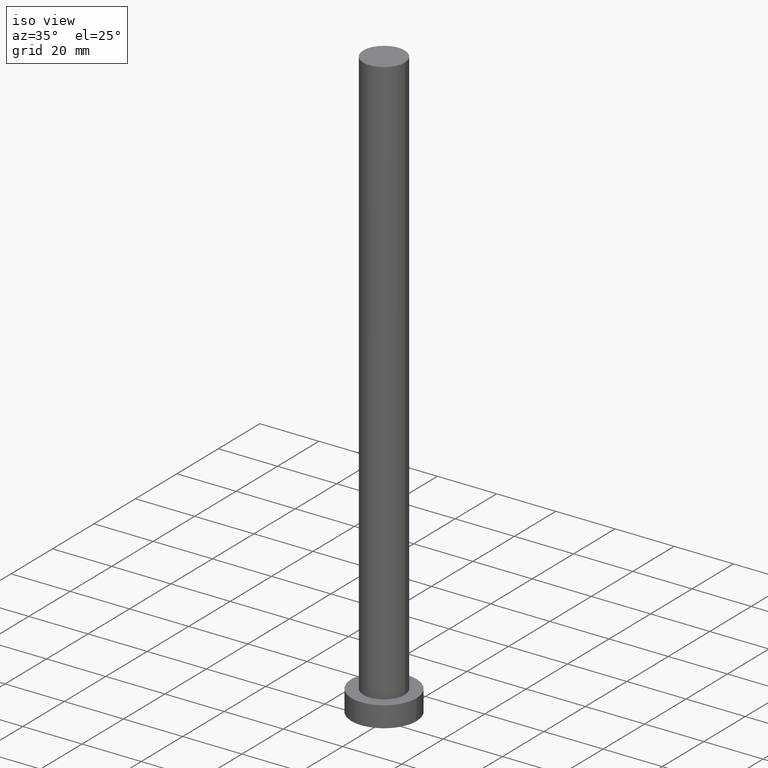
[diagram: clean part render]
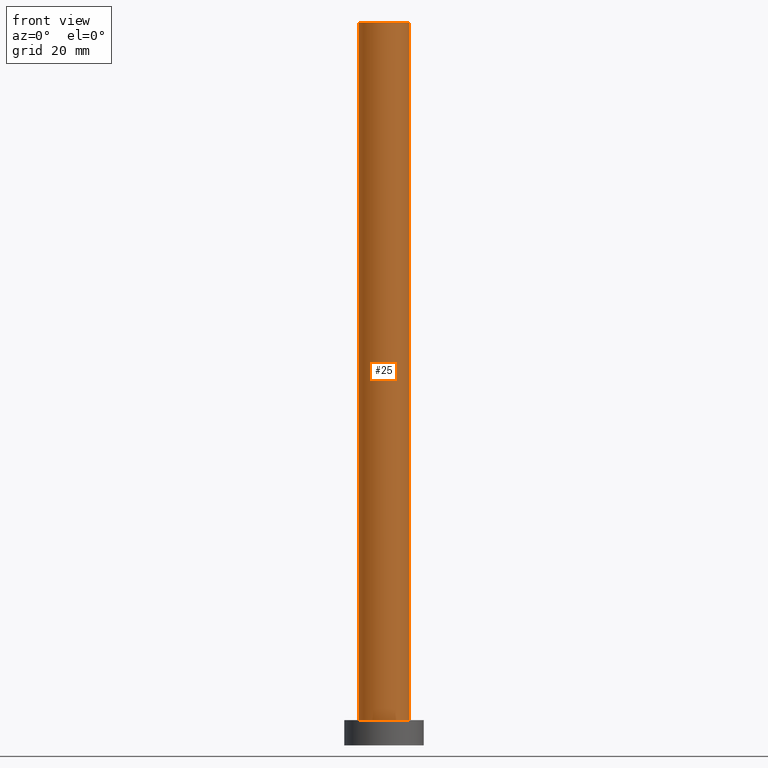
[diagram: tour spotlight — one face highlighted and labeled with its STEP entity id]
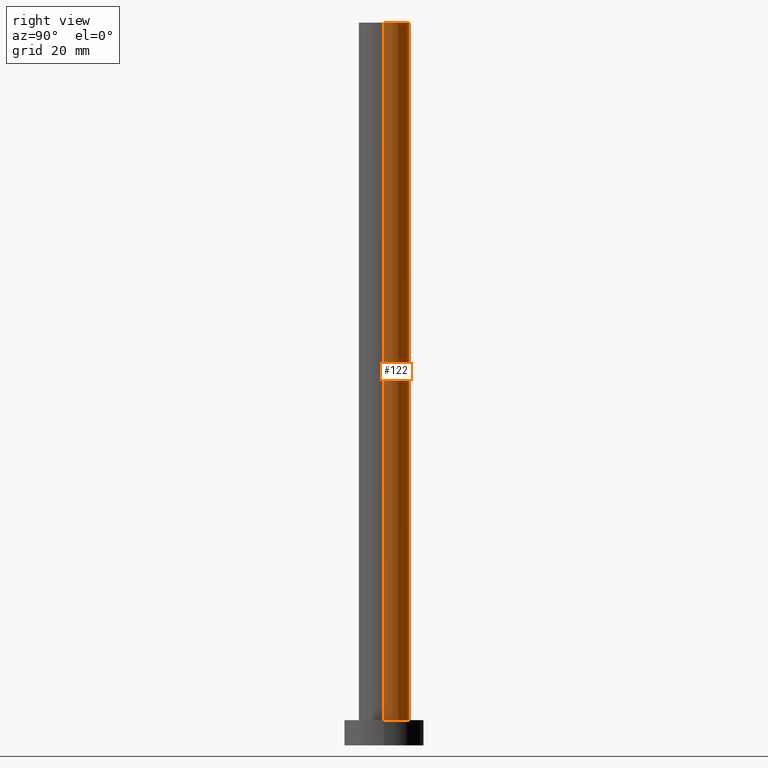
[diagram: tour spotlight — one face highlighted and labeled with its STEP entity id]
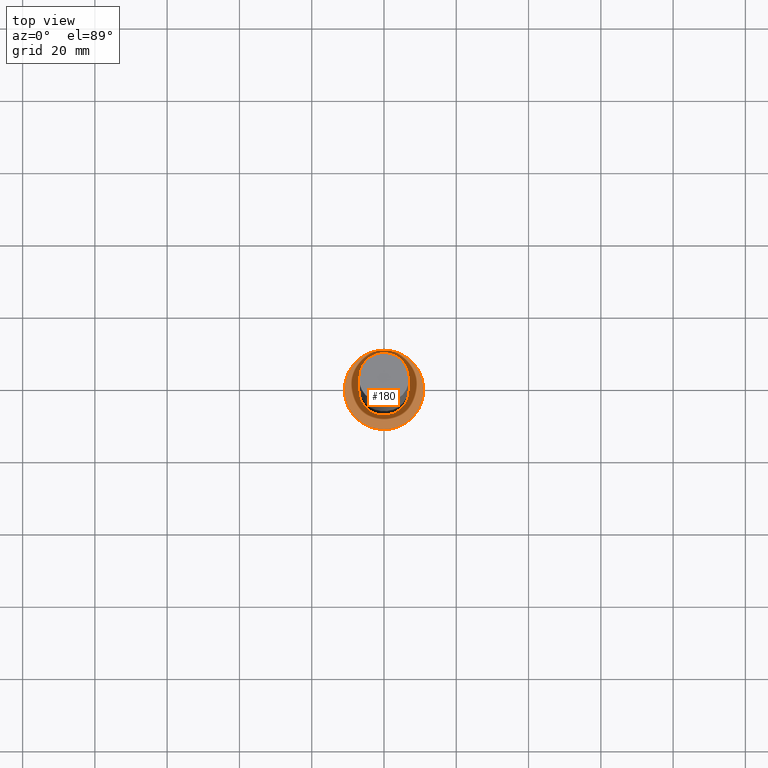
[diagram: tour spotlight — one face highlighted and labeled with its STEP entity id]
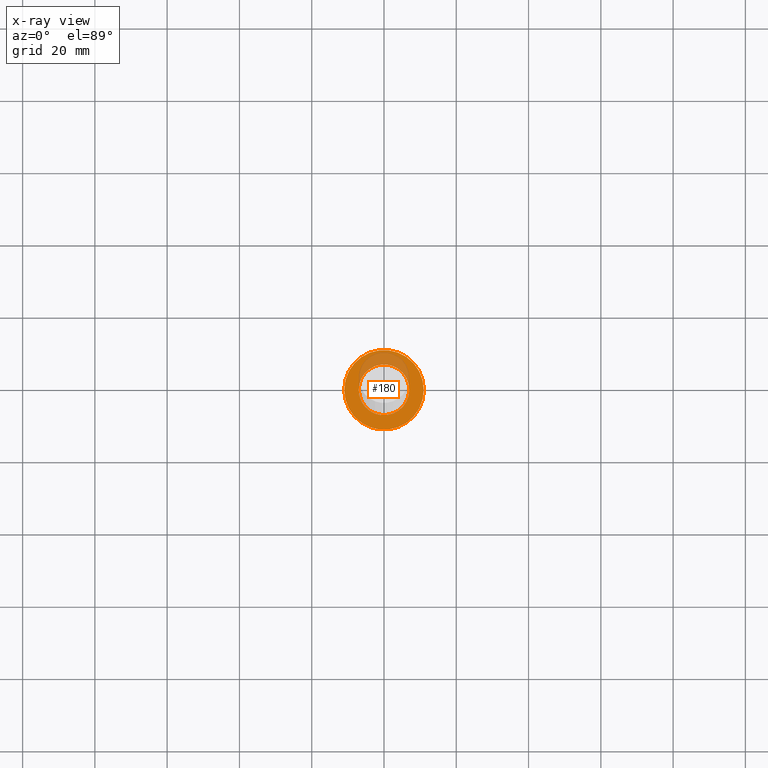
[diagram: x-ray of the same camera — body ghosted, this tour face saturated]
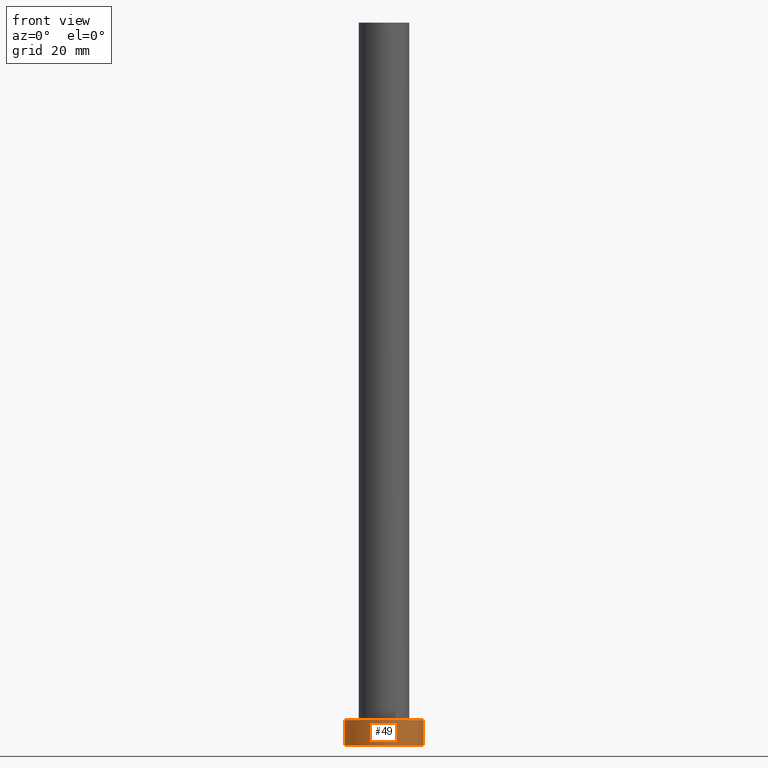
[diagram: tour spotlight — one face highlighted and labeled with its STEP entity id]
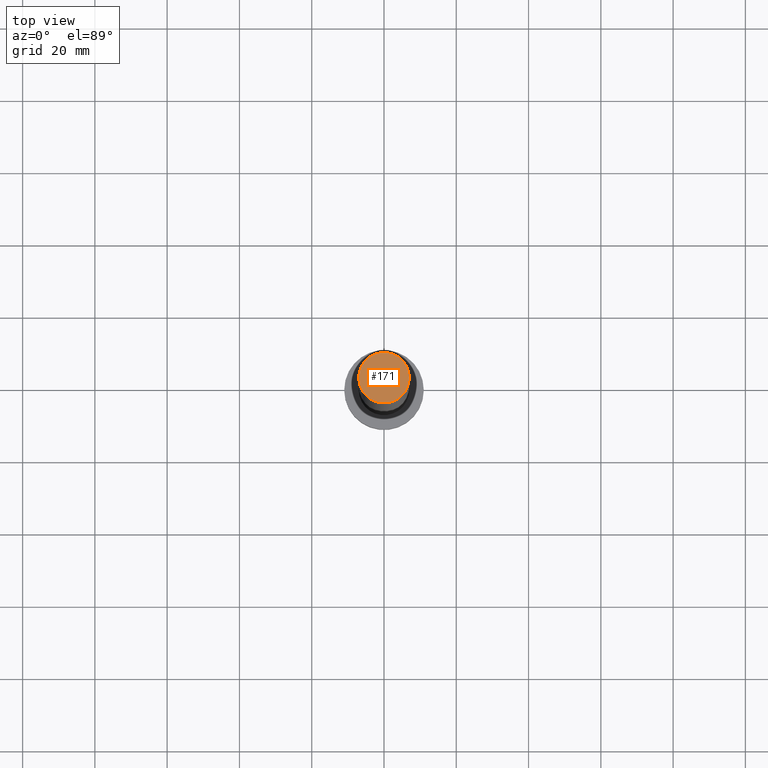
[diagram: tour spotlight — one face highlighted and labeled with its STEP entity id]
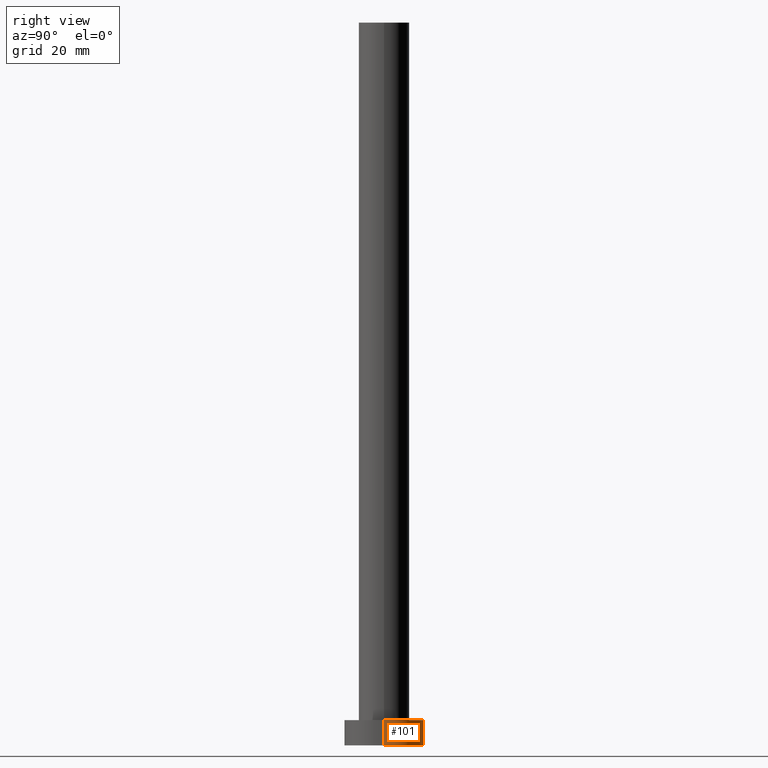
[diagram: tour spotlight — one face highlighted and labeled with its STEP entity id]
A machine part: a face-by-face anatomy tour. The part has 7 B-rep faces; the first image is the clean iso view, then the 6 largest visible faces are spotlighted one at a time (largest first), each with its STEP entity span.

Face 1 — front view, entity #25. In plain terms, the highlighted cylindrical surface (edge-blend (fillet) strip) has radius 7 mm, axis along (-0, -0, -1).
Definition (entity closure, byte-faithful):
#1 = EDGE_CURVE ( 'NONE', #42, #231, #20, .T. ) ;
#18 = LINE ( 'NONE', #201, #56 ) ;
#20 = LINE ( 'NONE', #21, #146 ) ;
#21 = CARTESIAN_POINT ( 'NONE',  ( -7.000000000000000888, 0.000000000000000000, 200.0000000000000000 ) ) ;
#22 = AXIS2_PLACEMENT_3D ( 'NONE', #67, #206, #166 ) ;
#25 = ADVANCED_FACE ( 'NONE', ( #227 ), #203, .T. ) ;
#42 = VERTEX_POINT ( 'NONE', #44 ) ;
#44 = CARTESIAN_POINT ( 'NONE',  ( -7.000000000000000888, 0.000000000000000000, 200.0000000000000000 ) ) ;
#51 = EDGE_CURVE ( 'NONE', #133, #60, #18, .T. ) ;
#56 = VECTOR ( 'NONE', #110, 1000.000000000000000 ) ;
#60 = VERTEX_POINT ( 'NONE', #164 ) ;
#61 = CIRCLE ( 'NONE', #204, 7.000000000000000888 ) ;
#62 = ORIENTED_EDGE ( 'NONE', *, *, #51, .F. ) ;
#65 = AXIS2_PLACEMENT_3D ( 'NONE', #93, #137, #219 ) ;
#67 = CARTESIAN_POINT ( 'NONE',  ( 0.000000000000000000, 0.000000000000000000, 200.0000000000000000 ) ) ;
#93 = CARTESIAN_POINT ( 'NONE',  ( 0.000000000000000000, 0.000000000000000000, 200.0000000000000000 ) ) ;
#95 = EDGE_CURVE ( 'NONE', #42, #133, #212, .T. ) ;
#96 = EDGE_LOOP ( 'NONE', ( #62, #185, #238, #143 ) ) ;
#110 = DIRECTION ( 'NONE',  ( -0.000000000000000000, -0.000000000000000000, -1.000000000000000000 ) ) ;
#133 = VERTEX_POINT ( 'NONE', #148 ) ;
#134 = CARTESIAN_POINT ( 'NONE',  ( 0.000000000000000000, 0.000000000000000000, 7.000000000000000000 ) ) ;
#137 = DIRECTION ( 'NONE',  ( 0.000000000000000000, 0.000000000000000000, 1.000000000000000000 ) ) ;
#143 = ORIENTED_EDGE ( 'NONE', *, *, #240, .T. ) ;
#146 = VECTOR ( 'NONE', #161, 1000.000000000000000 ) ;
#148 = CARTESIAN_POINT ( 'NONE',  ( 7.000000000000000888, 8.572527594031474176E-16, 200.0000000000000000 ) ) ;
#161 = DIRECTION ( 'NONE',  ( -0.000000000000000000, -0.000000000000000000, -1.000000000000000000 ) ) ;
#164 = CARTESIAN_POINT ( 'NONE',  ( 7.000000000000000888, 8.572527594031474176E-16, 7.000000000000000000 ) ) ;
#166 = DIRECTION ( 'NONE',  ( -1.000000000000000000, 0.000000000000000000, 0.000000000000000000 ) ) ;
#170 = CARTESIAN_POINT ( 'NONE',  ( -7.000000000000000888, 0.000000000000000000, 7.000000000000000000 ) ) ;
#185 = ORIENTED_EDGE ( 'NONE', *, *, #95, .F. ) ;
#189 = DIRECTION ( 'NONE',  ( 1.000000000000000000, 0.000000000000000000, 0.000000000000000000 ) ) ;
#201 = CARTESIAN_POINT ( 'NONE',  ( 7.000000000000000888, 8.572527594031474176E-16, 200.0000000000000000 ) ) ;
#203 = CYLINDRICAL_SURFACE ( 'NONE', #22, 7.000000000000000888 ) ;
#204 = AXIS2_PLACEMENT_3D ( 'NONE', #134, #214, #189 ) ;
#206 = DIRECTION ( 'NONE',  ( -0.000000000000000000, -0.000000000000000000, -1.000000000000000000 ) ) ;
#212 = CIRCLE ( 'NONE', #65, 7.000000000000000888 ) ;
#214 = DIRECTION ( 'NONE',  ( 0.000000000000000000, 0.000000000000000000, 1.000000000000000000 ) ) ;
#219 = DIRECTION ( 'NONE',  ( 1.000000000000000000, 0.000000000000000000, 0.000000000000000000 ) ) ;
#227 = FACE_OUTER_BOUND ( 'NONE', #96, .T. ) ;
#231 = VERTEX_POINT ( 'NONE', #170 ) ;
#238 = ORIENTED_EDGE ( 'NONE', *, *, #1, .T. ) ;
#240 = EDGE_CURVE ( 'NONE', #231, #60, #61, .T. ) ;

Face 2 — right view, entity #122. In plain terms, the highlighted cylindrical surface (edge-blend (fillet) strip) has radius 7 mm, axis along (-0, -0, -1).
Definition (entity closure, byte-faithful):
#1 = EDGE_CURVE ( 'NONE', #42, #231, #20, .T. ) ;
#2 = CIRCLE ( 'NONE', #103, 7.000000000000000888 ) ;
#13 = EDGE_CURVE ( 'NONE', #60, #231, #247, .T. ) ;
#18 = LINE ( 'NONE', #201, #56 ) ;
#20 = LINE ( 'NONE', #21, #146 ) ;
#21 = CARTESIAN_POINT ( 'NONE',  ( -7.000000000000000888, 0.000000000000000000, 200.0000000000000000 ) ) ;
#24 = CYLINDRICAL_SURFACE ( 'NONE', #68, 7.000000000000000888 ) ;
#32 = ORIENTED_EDGE ( 'NONE', *, *, #13, .T. ) ;
#39 = EDGE_LOOP ( 'NONE', ( #80, #252, #32, #116 ) ) ;
#42 = VERTEX_POINT ( 'NONE', #44 ) ;
#44 = CARTESIAN_POINT ( 'NONE',  ( -7.000000000000000888, 0.000000000000000000, 200.0000000000000000 ) ) ;
#51 = EDGE_CURVE ( 'NONE', #133, #60, #18, .T. ) ;
#56 = VECTOR ( 'NONE', #110, 1000.000000000000000 ) ;
#60 = VERTEX_POINT ( 'NONE', #164 ) ;
#68 = AXIS2_PLACEMENT_3D ( 'NONE', #183, #84, #162 ) ;
#74 = DIRECTION ( 'NONE',  ( 0.000000000000000000, 0.000000000000000000, 1.000000000000000000 ) ) ;
#80 = ORIENTED_EDGE ( 'NONE', *, *, #178, .F. ) ;
#82 = DIRECTION ( 'NONE',  ( 0.000000000000000000, 0.000000000000000000, 1.000000000000000000 ) ) ;
#84 = DIRECTION ( 'NONE',  ( -0.000000000000000000, -0.000000000000000000, -1.000000000000000000 ) ) ;
#91 = DIRECTION ( 'NONE',  ( 1.000000000000000000, 0.000000000000000000, 0.000000000000000000 ) ) ;
#103 = AXIS2_PLACEMENT_3D ( 'NONE', #119, #74, #91 ) ;
#110 = DIRECTION ( 'NONE',  ( -0.000000000000000000, -0.000000000000000000, -1.000000000000000000 ) ) ;
#116 = ORIENTED_EDGE ( 'NONE', *, *, #1, .F. ) ;
#119 = CARTESIAN_POINT ( 'NONE',  ( 0.000000000000000000, 0.000000000000000000, 200.0000000000000000 ) ) ;
#122 = ADVANCED_FACE ( 'NONE', ( #233 ), #24, .T. ) ;
#133 = VERTEX_POINT ( 'NONE', #148 ) ;
#146 = VECTOR ( 'NONE', #161, 1000.000000000000000 ) ;
#148 = CARTESIAN_POINT ( 'NONE',  ( 7.000000000000000888, 8.572527594031474176E-16, 200.0000000000000000 ) ) ;
#159 = DIRECTION ( 'NONE',  ( 1.000000000000000000, 0.000000000000000000, 0.000000000000000000 ) ) ;
#161 = DIRECTION ( 'NONE',  ( -0.000000000000000000, -0.000000000000000000, -1.000000000000000000 ) ) ;
#162 = DIRECTION ( 'NONE',  ( -1.000000000000000000, 0.000000000000000000, 0.000000000000000000 ) ) ;
#164 = CARTESIAN_POINT ( 'NONE',  ( 7.000000000000000888, 8.572527594031474176E-16, 7.000000000000000000 ) ) ;
#170 = CARTESIAN_POINT ( 'NONE',  ( -7.000000000000000888, 0.000000000000000000, 7.000000000000000000 ) ) ;
#178 = EDGE_CURVE ( 'NONE', #133, #42, #2, .T. ) ;
#179 = CARTESIAN_POINT ( 'NONE',  ( 0.000000000000000000, 0.000000000000000000, 7.000000000000000000 ) ) ;
#183 = CARTESIAN_POINT ( 'NONE',  ( 0.000000000000000000, 0.000000000000000000, 200.0000000000000000 ) ) ;
#201 = CARTESIAN_POINT ( 'NONE',  ( 7.000000000000000888, 8.572527594031474176E-16, 200.0000000000000000 ) ) ;
#225 = AXIS2_PLACEMENT_3D ( 'NONE', #179, #82, #159 ) ;
#231 = VERTEX_POINT ( 'NONE', #170 ) ;
#233 = FACE_OUTER_BOUND ( 'NONE', #39, .T. ) ;
#247 = CIRCLE ( 'NONE', #225, 7.000000000000000888 ) ;
#252 = ORIENTED_EDGE ( 'NONE', *, *, #51, .T. ) ;

Face 3 — top view, entity #180. An x-ray twin of the same camera follows (body ghosted, this face saturated) — the face is partly hidden behind the body. In plain terms, the highlighted planar face has unit normal (0, 0, 1).
Definition (entity closure, byte-faithful):
#7 = AXIS2_PLACEMENT_3D ( 'NONE', #176, #253, #115 ) ;
#8 = EDGE_LOOP ( 'NONE', ( #33, #107 ) ) ;
#13 = EDGE_CURVE ( 'NONE', #60, #231, #247, .T. ) ;
#16 = CARTESIAN_POINT ( 'NONE',  ( 11.00000000000000000, 1.347111479062088405E-15, 7.000000000000000000 ) ) ;
#33 = ORIENTED_EDGE ( 'NONE', *, *, #72, .T. ) ;
#38 = FACE_BOUND ( 'NONE', #216, .T. ) ;
#50 = DIRECTION ( 'NONE',  ( 0.000000000000000000, 0.000000000000000000, 1.000000000000000000 ) ) ;
#60 = VERTEX_POINT ( 'NONE', #164 ) ;
#61 = CIRCLE ( 'NONE', #204, 7.000000000000000888 ) ;
#66 = VERTEX_POINT ( 'NONE', #16 ) ;
#72 = EDGE_CURVE ( 'NONE', #191, #66, #139, .T. ) ;
#77 = CARTESIAN_POINT ( 'NONE',  ( -11.00000000000000000, 0.000000000000000000, 7.000000000000000000 ) ) ;
#82 = DIRECTION ( 'NONE',  ( 0.000000000000000000, 0.000000000000000000, 1.000000000000000000 ) ) ;
#94 = PLANE ( 'NONE',  #7 ) ;
#107 = ORIENTED_EDGE ( 'NONE', *, *, #121, .T. ) ;
#114 = DIRECTION ( 'NONE',  ( 1.000000000000000000, 0.000000000000000000, 0.000000000000000000 ) ) ;
#115 = DIRECTION ( 'NONE',  ( 1.000000000000000000, 0.000000000000000000, -0.000000000000000000 ) ) ;
#121 = EDGE_CURVE ( 'NONE', #66, #191, #255, .T. ) ;
#128 = DIRECTION ( 'NONE',  ( 1.000000000000000000, 0.000000000000000000, 0.000000000000000000 ) ) ;
#134 = CARTESIAN_POINT ( 'NONE',  ( 0.000000000000000000, 0.000000000000000000, 7.000000000000000000 ) ) ;
#139 = CIRCLE ( 'NONE', #200, 11.00000000000000000 ) ;
#149 = AXIS2_PLACEMENT_3D ( 'NONE', #186, #50, #128 ) ;
#150 = ORIENTED_EDGE ( 'NONE', *, *, #13, .F. ) ;
#155 = ORIENTED_EDGE ( 'NONE', *, *, #240, .F. ) ;
#159 = DIRECTION ( 'NONE',  ( 1.000000000000000000, 0.000000000000000000, 0.000000000000000000 ) ) ;
#164 = CARTESIAN_POINT ( 'NONE',  ( 7.000000000000000888, 8.572527594031474176E-16, 7.000000000000000000 ) ) ;
#170 = CARTESIAN_POINT ( 'NONE',  ( -7.000000000000000888, 0.000000000000000000, 7.000000000000000000 ) ) ;
#174 = DIRECTION ( 'NONE',  ( 0.000000000000000000, 0.000000000000000000, 1.000000000000000000 ) ) ;
#176 = CARTESIAN_POINT ( 'NONE',  ( 0.000000000000000000, 0.000000000000000000, 7.000000000000000000 ) ) ;
#179 = CARTESIAN_POINT ( 'NONE',  ( 0.000000000000000000, 0.000000000000000000, 7.000000000000000000 ) ) ;
#180 = ADVANCED_FACE ( 'NONE', ( #38, #197 ), #94, .T. ) ;
#186 = CARTESIAN_POINT ( 'NONE',  ( 0.000000000000000000, 0.000000000000000000, 7.000000000000000000 ) ) ;
#189 = DIRECTION ( 'NONE',  ( 1.000000000000000000, 0.000000000000000000, 0.000000000000000000 ) ) ;
#191 = VERTEX_POINT ( 'NONE', #77 ) ;
#192 = CARTESIAN_POINT ( 'NONE',  ( 0.000000000000000000, 0.000000000000000000, 7.000000000000000000 ) ) ;
#197 = FACE_OUTER_BOUND ( 'NONE', #8, .T. ) ;
#200 = AXIS2_PLACEMENT_3D ( 'NONE', #192, #174, #114 ) ;
#204 = AXIS2_PLACEMENT_3D ( 'NONE', #134, #214, #189 ) ;
#214 = DIRECTION ( 'NONE',  ( 0.000000000000000000, 0.000000000000000000, 1.000000000000000000 ) ) ;
#216 = EDGE_LOOP ( 'NONE', ( #155, #150 ) ) ;
#225 = AXIS2_PLACEMENT_3D ( 'NONE', #179, #82, #159 ) ;
#231 = VERTEX_POINT ( 'NONE', #170 ) ;
#240 = EDGE_CURVE ( 'NONE', #231, #60, #61, .T. ) ;
#247 = CIRCLE ( 'NONE', #225, 7.000000000000000888 ) ;
#253 = DIRECTION ( 'NONE',  ( 0.000000000000000000, 0.000000000000000000, 1.000000000000000000 ) ) ;
#255 = CIRCLE ( 'NONE', #149, 11.00000000000000000 ) ;

Face 4 — front view, entity #49. In plain terms, the highlighted cylindrical surface (partial cylindrical patch) has radius 11 mm, axis along (-0, -0, -1).
Definition (entity closure, byte-faithful):
#11 = CARTESIAN_POINT ( 'NONE',  ( -11.00000000000000000, 0.000000000000000000, 7.000000000000000000 ) ) ;
#12 = ORIENTED_EDGE ( 'NONE', *, *, #190, .F. ) ;
#16 = CARTESIAN_POINT ( 'NONE',  ( 11.00000000000000000, 1.347111479062088405E-15, 7.000000000000000000 ) ) ;
#28 = CARTESIAN_POINT ( 'NONE',  ( -11.00000000000000000, 0.000000000000000000, 0.000000000000000000 ) ) ;
#49 = ADVANCED_FACE ( 'NONE', ( #105 ), #243, .T. ) ;
#64 = CARTESIAN_POINT ( 'NONE',  ( 0.000000000000000000, 0.000000000000000000, 7.000000000000000000 ) ) ;
#66 = VERTEX_POINT ( 'NONE', #16 ) ;
#70 = DIRECTION ( 'NONE',  ( 0.000000000000000000, 0.000000000000000000, 1.000000000000000000 ) ) ;
#72 = EDGE_CURVE ( 'NONE', #191, #66, #139, .T. ) ;
#77 = CARTESIAN_POINT ( 'NONE',  ( -11.00000000000000000, 0.000000000000000000, 7.000000000000000000 ) ) ;
#86 = ORIENTED_EDGE ( 'NONE', *, *, #202, .T. ) ;
#89 = DIRECTION ( 'NONE',  ( -0.000000000000000000, -0.000000000000000000, -1.000000000000000000 ) ) ;
#90 = DIRECTION ( 'NONE',  ( -0.000000000000000000, -0.000000000000000000, -1.000000000000000000 ) ) ;
#104 = EDGE_LOOP ( 'NONE', ( #12, #198, #86, #129 ) ) ;
#105 = FACE_OUTER_BOUND ( 'NONE', #104, .T. ) ;
#108 = EDGE_CURVE ( 'NONE', #145, #241, #230, .T. ) ;
#114 = DIRECTION ( 'NONE',  ( 1.000000000000000000, 0.000000000000000000, 0.000000000000000000 ) ) ;
#120 = AXIS2_PLACEMENT_3D ( 'NONE', #248, #70, #207 ) ;
#126 = DIRECTION ( 'NONE',  ( -1.000000000000000000, 0.000000000000000000, 0.000000000000000000 ) ) ;
#129 = ORIENTED_EDGE ( 'NONE', *, *, #108, .T. ) ;
#139 = CIRCLE ( 'NONE', #200, 11.00000000000000000 ) ;
#145 = VERTEX_POINT ( 'NONE', #28 ) ;
#153 = VECTOR ( 'NONE', #90, 1000.000000000000000 ) ;
#157 = LINE ( 'NONE', #11, #246 ) ;
#160 = DIRECTION ( 'NONE',  ( -0.000000000000000000, -0.000000000000000000, -1.000000000000000000 ) ) ;
#172 = CARTESIAN_POINT ( 'NONE',  ( 11.00000000000000000, 1.347111479062088405E-15, 0.000000000000000000 ) ) ;
#174 = DIRECTION ( 'NONE',  ( 0.000000000000000000, 0.000000000000000000, 1.000000000000000000 ) ) ;
#175 = LINE ( 'NONE', #193, #153 ) ;
#177 = AXIS2_PLACEMENT_3D ( 'NONE', #64, #160, #126 ) ;
#190 = EDGE_CURVE ( 'NONE', #66, #241, #175, .T. ) ;
#191 = VERTEX_POINT ( 'NONE', #77 ) ;
#192 = CARTESIAN_POINT ( 'NONE',  ( 0.000000000000000000, 0.000000000000000000, 7.000000000000000000 ) ) ;
#193 = CARTESIAN_POINT ( 'NONE',  ( 11.00000000000000000, 1.347111479062088405E-15, 7.000000000000000000 ) ) ;
#198 = ORIENTED_EDGE ( 'NONE', *, *, #72, .F. ) ;
#200 = AXIS2_PLACEMENT_3D ( 'NONE', #192, #174, #114 ) ;
#202 = EDGE_CURVE ( 'NONE', #191, #145, #157, .T. ) ;
#207 = DIRECTION ( 'NONE',  ( 1.000000000000000000, 0.000000000000000000, 0.000000000000000000 ) ) ;
#230 = CIRCLE ( 'NONE', #120, 11.00000000000000000 ) ;
#241 = VERTEX_POINT ( 'NONE', #172 ) ;
#243 = CYLINDRICAL_SURFACE ( 'NONE', #177, 11.00000000000000000 ) ;
#246 = VECTOR ( 'NONE', #89, 1000.000000000000000 ) ;
#248 = CARTESIAN_POINT ( 'NONE',  ( 0.000000000000000000, 0.000000000000000000, 0.000000000000000000 ) ) ;

Face 5 — top view, entity #171. In plain terms, the highlighted planar face has unit normal (0, 0, 1).
Definition (entity closure, byte-faithful):
#2 = CIRCLE ( 'NONE', #103, 7.000000000000000888 ) ;
#30 = CARTESIAN_POINT ( 'NONE',  ( 0.000000000000000000, 0.000000000000000000, 200.0000000000000000 ) ) ;
#36 = DIRECTION ( 'NONE',  ( 0.000000000000000000, 0.000000000000000000, 1.000000000000000000 ) ) ;
#42 = VERTEX_POINT ( 'NONE', #44 ) ;
#44 = CARTESIAN_POINT ( 'NONE',  ( -7.000000000000000888, 0.000000000000000000, 200.0000000000000000 ) ) ;
#52 = AXIS2_PLACEMENT_3D ( 'NONE', #30, #36, #188 ) ;
#58 = FACE_OUTER_BOUND ( 'NONE', #209, .T. ) ;
#65 = AXIS2_PLACEMENT_3D ( 'NONE', #93, #137, #219 ) ;
#74 = DIRECTION ( 'NONE',  ( 0.000000000000000000, 0.000000000000000000, 1.000000000000000000 ) ) ;
#91 = DIRECTION ( 'NONE',  ( 1.000000000000000000, 0.000000000000000000, 0.000000000000000000 ) ) ;
#93 = CARTESIAN_POINT ( 'NONE',  ( 0.000000000000000000, 0.000000000000000000, 200.0000000000000000 ) ) ;
#95 = EDGE_CURVE ( 'NONE', #42, #133, #212, .T. ) ;
#103 = AXIS2_PLACEMENT_3D ( 'NONE', #119, #74, #91 ) ;
#119 = CARTESIAN_POINT ( 'NONE',  ( 0.000000000000000000, 0.000000000000000000, 200.0000000000000000 ) ) ;
#124 = ORIENTED_EDGE ( 'NONE', *, *, #95, .T. ) ;
#133 = VERTEX_POINT ( 'NONE', #148 ) ;
#137 = DIRECTION ( 'NONE',  ( 0.000000000000000000, 0.000000000000000000, 1.000000000000000000 ) ) ;
#148 = CARTESIAN_POINT ( 'NONE',  ( 7.000000000000000888, 8.572527594031474176E-16, 200.0000000000000000 ) ) ;
#171 = ADVANCED_FACE ( 'NONE', ( #58 ), #217, .T. ) ;
#178 = EDGE_CURVE ( 'NONE', #133, #42, #2, .T. ) ;
#188 = DIRECTION ( 'NONE',  ( 1.000000000000000000, 0.000000000000000000, -0.000000000000000000 ) ) ;
#209 = EDGE_LOOP ( 'NONE', ( #124, #232 ) ) ;
#212 = CIRCLE ( 'NONE', #65, 7.000000000000000888 ) ;
#217 = PLANE ( 'NONE',  #52 ) ;
#219 = DIRECTION ( 'NONE',  ( 1.000000000000000000, 0.000000000000000000, 0.000000000000000000 ) ) ;
#232 = ORIENTED_EDGE ( 'NONE', *, *, #178, .T. ) ;

Face 6 — right view, entity #101. In plain terms, the highlighted cylindrical surface (partial cylindrical patch) has radius 11 mm, axis along (-0, -0, -1).
Definition (entity closure, byte-faithful):
#5 = CARTESIAN_POINT ( 'NONE',  ( 0.000000000000000000, 0.000000000000000000, 7.000000000000000000 ) ) ;
#11 = CARTESIAN_POINT ( 'NONE',  ( -11.00000000000000000, 0.000000000000000000, 7.000000000000000000 ) ) ;
#16 = CARTESIAN_POINT ( 'NONE',  ( 11.00000000000000000, 1.347111479062088405E-15, 7.000000000000000000 ) ) ;
#26 = ORIENTED_EDGE ( 'NONE', *, *, #190, .T. ) ;
#28 = CARTESIAN_POINT ( 'NONE',  ( -11.00000000000000000, 0.000000000000000000, 0.000000000000000000 ) ) ;
#50 = DIRECTION ( 'NONE',  ( 0.000000000000000000, 0.000000000000000000, 1.000000000000000000 ) ) ;
#55 = DIRECTION ( 'NONE',  ( 1.000000000000000000, 0.000000000000000000, 0.000000000000000000 ) ) ;
#57 = ORIENTED_EDGE ( 'NONE', *, *, #237, .T. ) ;
#66 = VERTEX_POINT ( 'NONE', #16 ) ;
#71 = ORIENTED_EDGE ( 'NONE', *, *, #202, .F. ) ;
#77 = CARTESIAN_POINT ( 'NONE',  ( -11.00000000000000000, 0.000000000000000000, 7.000000000000000000 ) ) ;
#88 = CYLINDRICAL_SURFACE ( 'NONE', #195, 11.00000000000000000 ) ;
#89 = DIRECTION ( 'NONE',  ( -0.000000000000000000, -0.000000000000000000, -1.000000000000000000 ) ) ;
#90 = DIRECTION ( 'NONE',  ( -0.000000000000000000, -0.000000000000000000, -1.000000000000000000 ) ) ;
#101 = ADVANCED_FACE ( 'NONE', ( #249 ), #88, .T. ) ;
#102 = ORIENTED_EDGE ( 'NONE', *, *, #121, .F. ) ;
#112 = CIRCLE ( 'NONE', #163, 11.00000000000000000 ) ;
#121 = EDGE_CURVE ( 'NONE', #66, #191, #255, .T. ) ;
#128 = DIRECTION ( 'NONE',  ( 1.000000000000000000, 0.000000000000000000, 0.000000000000000000 ) ) ;
#145 = VERTEX_POINT ( 'NONE', #28 ) ;
#149 = AXIS2_PLACEMENT_3D ( 'NONE', #186, #50, #128 ) ;
#152 = DIRECTION ( 'NONE',  ( -1.000000000000000000, 0.000000000000000000, 0.000000000000000000 ) ) ;
#153 = VECTOR ( 'NONE', #90, 1000.000000000000000 ) ;
#157 = LINE ( 'NONE', #11, #246 ) ;
#163 = AXIS2_PLACEMENT_3D ( 'NONE', #250, #234, #55 ) ;
#167 = DIRECTION ( 'NONE',  ( -0.000000000000000000, -0.000000000000000000, -1.000000000000000000 ) ) ;
#172 = CARTESIAN_POINT ( 'NONE',  ( 11.00000000000000000, 1.347111479062088405E-15, 0.000000000000000000 ) ) ;
#175 = LINE ( 'NONE', #193, #153 ) ;
#186 = CARTESIAN_POINT ( 'NONE',  ( 0.000000000000000000, 0.000000000000000000, 7.000000000000000000 ) ) ;
#190 = EDGE_CURVE ( 'NONE', #66, #241, #175, .T. ) ;
#191 = VERTEX_POINT ( 'NONE', #77 ) ;
#193 = CARTESIAN_POINT ( 'NONE',  ( 11.00000000000000000, 1.347111479062088405E-15, 7.000000000000000000 ) ) ;
#195 = AXIS2_PLACEMENT_3D ( 'NONE', #5, #167, #152 ) ;
#202 = EDGE_CURVE ( 'NONE', #191, #145, #157, .T. ) ;
#234 = DIRECTION ( 'NONE',  ( 0.000000000000000000, 0.000000000000000000, 1.000000000000000000 ) ) ;
#236 = EDGE_LOOP ( 'NONE', ( #102, #26, #57, #71 ) ) ;
#237 = EDGE_CURVE ( 'NONE', #241, #145, #112, .T. ) ;
#241 = VERTEX_POINT ( 'NONE', #172 ) ;
#246 = VECTOR ( 'NONE', #89, 1000.000000000000000 ) ;
#249 = FACE_OUTER_BOUND ( 'NONE', #236, .T. ) ;
#250 = CARTESIAN_POINT ( 'NONE',  ( 0.000000000000000000, 0.000000000000000000, 0.000000000000000000 ) ) ;
#255 = CIRCLE ( 'NONE', #149, 11.00000000000000000 ) ;